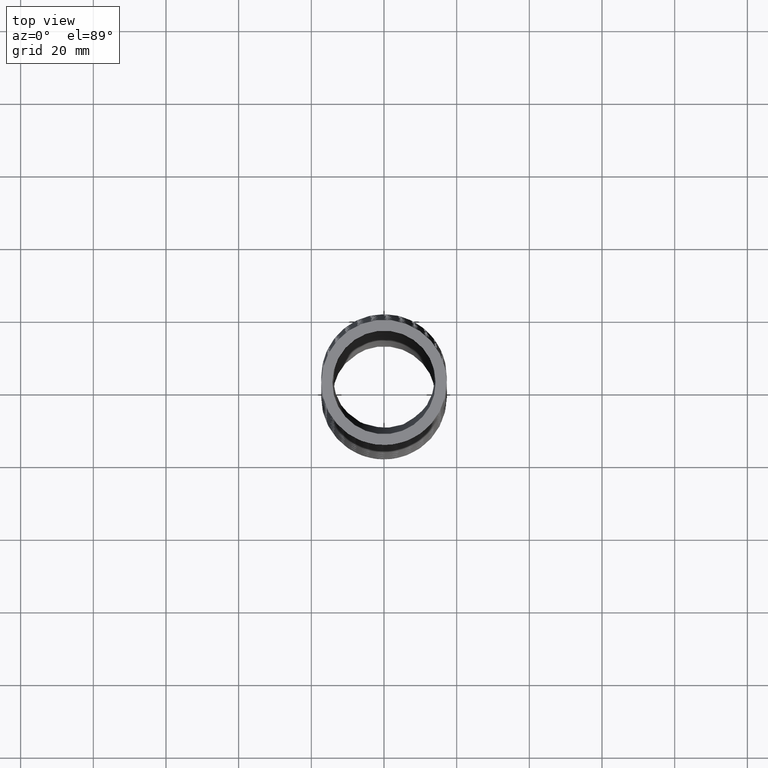
[diagram: clean part render]
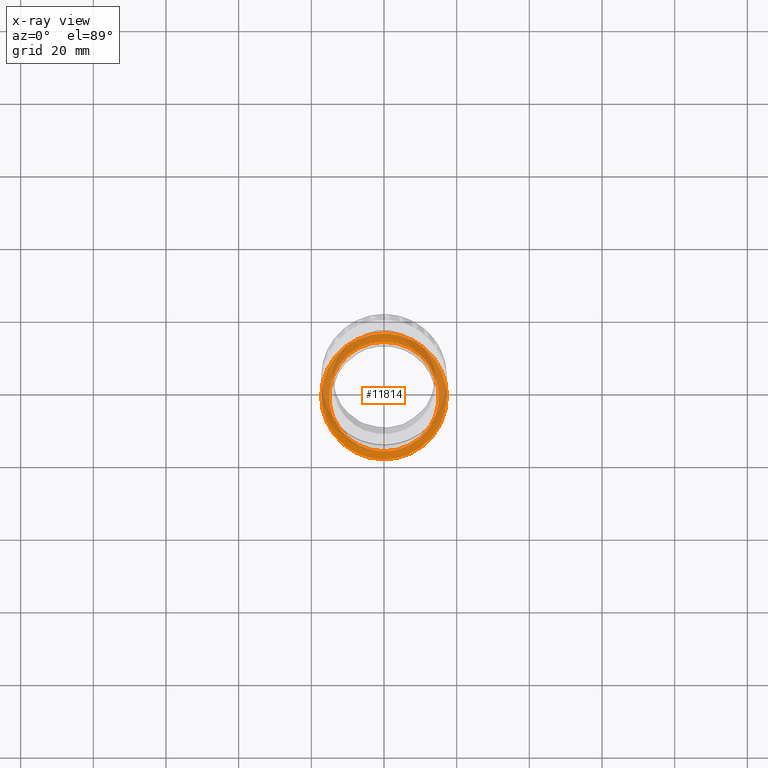
[diagram: x-ray — body ghosted, one internal face saturated and labeled with its STEP entity id]
A machine part, top view, then the same camera in x-ray: the body is ghosted and one INTERNAL B-rep face — a face not visible from any outside direction — is saturated and labeled: STEP entity #11814.
In plain terms, the highlighted planar face has unit normal (0, -0, 1).
Its self-contained STEP definition (entity closure, byte-faithful):
#191 = EDGE_CURVE ( 'NONE', #9406, #9407, #10507, .T. ) ;
#7506 = CARTESIAN_POINT ( 'NONE',  ( -0.6799999999999998300, -0.02120331437920896400, -7.473392953530793500 ) ) ;
#7508 = CARTESIAN_POINT ( 'NONE',  ( 0.6799999999999998300, -0.02120331437920920000, -7.473392953530791700 ) ) ;
#7550 = CARTESIAN_POINT ( 'NONE',  ( -0.4150477313572547000, -0.5619980563678842500, -7.473392953530787300 ) ) ;
#7551 = CARTESIAN_POINT ( 'NONE',  ( -0.3969764173826341700, -0.5754870828903109200, -7.473392953530802400 ) ) ;
#7552 = CARTESIAN_POINT ( 'NONE',  ( -0.3412200150845353100, -0.6129458261486440100, -7.473392953530798800 ) ) ;
#7553 = CARTESIAN_POINT ( 'NONE',  ( -0.3021104290278500100, -0.6339419358593497700, -7.473392953530793500 ) ) ;
#7554 = CARTESIAN_POINT ( 'NONE',  ( -0.2406012969264889100, -0.6596012006070023400, -7.473392953530796100 ) ) ;
#7555 = CARTESIAN_POINT ( 'NONE',  ( -0.2196207411613795800, -0.6671748600276415900, -7.473392953530788100 ) ) ;
#7556 = CARTESIAN_POINT ( 'NONE',  ( -0.1766729293072305500, -0.6802983485019706800, -7.473392953530788100 ) ) ;
#7557 = CARTESIAN_POINT ( 'NONE',  ( -0.1549142682663999200, -0.6857764967551672800, -7.473392953530789000 ) ) ;
#7558 = CARTESIAN_POINT ( 'NONE',  ( -0.08946346908533893400, -0.6988809778855588100, -7.473392953530789000 ) ) ;
#7559 = CARTESIAN_POINT ( 'NONE',  ( -0.04532392179567910200, -0.7032941409956037200, -7.473392953530792600 ) ) ;
#7560 = CARTESIAN_POINT ( 'NONE',  ( 0.02165193086968571200, -0.7033606704831750800, -7.473392953530792600 ) ) ;
#7561 = CARTESIAN_POINT ( 'NONE',  ( 0.04421354491846974500, -0.7022643462721162000, -7.473392953530791700 ) ) ;
#7562 = CARTESIAN_POINT ( 'NONE',  ( 0.08868805822265120300, -0.6978836031342600100, -7.473392953530790800 ) ) ;
#7563 = CARTESIAN_POINT ( 'NONE',  ( 0.1106814445971021500, -0.6946099106361441900, -7.473392953530788100 ) ) ;
#7564 = CARTESIAN_POINT ( 'NONE',  ( 0.1759460441836651100, -0.6816101734470223500, -7.473392953530789000 ) ) ;
#7565 = CARTESIAN_POINT ( 'NONE',  ( 0.2185521832983495500, -0.6687187943583020600, -7.473392953530787300 ) ) ;
#7566 = CARTESIAN_POINT ( 'NONE',  ( 0.3016120015362769300, -0.6342283596159967700, -7.473392953530789000 ) ) ;
#7567 = CARTESIAN_POINT ( 'NONE',  ( 0.3407598208029019600, -0.6131815282807716600, -7.473392953530792600 ) ) ;
#7568 = CARTESIAN_POINT ( 'NONE',  ( 0.3960545227818803000, -0.5761420361169331500, -7.473392953530792600 ) ) ;
#7569 = CARTESIAN_POINT ( 'NONE',  ( 0.4139106677936286200, -0.5628772133752305600, -7.473392953530781900 ) ) ;
#7570 = CARTESIAN_POINT ( 'NONE',  ( 0.4484457992491507300, -0.5344689223631664500, -7.473392953530780100 ) ) ;
#7571 = CARTESIAN_POINT ( 'NONE',  ( 0.4651530502151605700, -0.5192789588199441300, -7.473392953530789000 ) ) ;
#7572 = CARTESIAN_POINT ( 'NONE',  ( 0.5124013336726714900, -0.4718683399283489200, -7.473392953530788100 ) ) ;
#7573 = CARTESIAN_POINT ( 'NONE',  ( 0.5404818473240110600, -0.4375381150760500600, -7.473392953530793500 ) ) ;
#7574 = CARTESIAN_POINT ( 'NONE',  ( 0.5775240784299490200, -0.3819970731399521800, -7.473392953530792600 ) ) ;
#7575 = CARTESIAN_POINT ( 'NONE',  ( 0.5890579060613073700, -0.3627301762273905100, -7.473392953530791700 ) ) ;
#7576 = CARTESIAN_POINT ( 'NONE',  ( 0.6101774119966828500, -0.3231205662017073700, -7.473392953530790800 ) ) ;
#7577 = CARTESIAN_POINT ( 'NONE',  ( 0.6196820910986998700, -0.3029486601395903200, -7.473392953530788100 ) ) ;
#7578 = CARTESIAN_POINT ( 'NONE',  ( 0.6451306485290873000, -0.2413663428121724500, -7.473392953530788100 ) ) ;
#7579 = CARTESIAN_POINT ( 'NONE',  ( 0.6580379510490765900, -0.1988993892499501000, -7.473392953530791700 ) ) ;
#7580 = CARTESIAN_POINT ( 'NONE',  ( 0.6711710143586220300, -0.1330320346742376900, -7.473392953530790800 ) ) ;
#7581 = CARTESIAN_POINT ( 'NONE',  ( 0.6744894098091518400, -0.1107215655237049800, -7.473392953530791700 ) ) ;
#7582 = CARTESIAN_POINT ( 'NONE',  ( 0.6788935072329024300, -0.06609972855633375300, -7.473392953530790800 ) ) ;
#7583 = CARTESIAN_POINT ( 'NONE',  ( 0.6799999999999996000, -0.04369758788995287800, -7.473392953530792600 ) ) ;
#7584 = CARTESIAN_POINT ( 'NONE',  ( 0.6799999999999998300, -0.02120331437920920000, -7.473392953530791700 ) ) ;
#7585 = B_SPLINE_CURVE_WITH_KNOTS ( 'NONE', 3,
 ( #7584, #7583, #7582, #7581, #7580, #7579, #7578, #7577, #7576, #7575, #7574, #7573, #7572, #7571, #7570, #7569, #7568, #7567, #7566, #7565, #7564, #7563, #7562, #7561, #7560, #7559, #7558, #7557, #7556, #7555, #7554, #7553, #7552, #7551, #7550, #7624, #7623, #7622, #7621, #7620, #7619, #7618, #7617, #7616, #7615, #7614, #7613, #7612, #7611 ),
 .UNSPECIFIED., .F., .F.,
 ( 4, 2, 2, 2, 2, 2, 2, 2, 2, 2, 2, 2, 2, 2, 2, 2, 2, 2, 1, 2, 2, 2, 2, 2, 4 ),
 ( 0.0000000000000000000, 0.001708152414843737400, 0.003416304829687474300, 0.006832609659374947800, 0.008540762074218687100, 0.01024891448906242600, 0.01366521931874990800, 0.01537337173359364800, 0.01708152414843738800, 0.02049782897812487200, 0.02391413380781235900, 0.02562228622265609900, 0.02733043863749984000, 0.03074674346718731700, 0.03245489588203105700, 0.03416304829687479700, 0.03757935312656227000, 0.03928750554140600400, 0.04099565795624974400, 0.04270381037109348400, 0.04441196278593721700, 0.04782826761562469800, 0.04953642003046843100, 0.05124457244531216400, 0.05466087727499964500 ),
 .UNSPECIFIED. ) ;
#7611 = CARTESIAN_POINT ( 'NONE',  ( -0.6799999999999998300, -0.02120331437920896400, -7.473392953530793500 ) ) ;
#7612 = CARTESIAN_POINT ( 'NONE',  ( -0.6799999999999999400, -0.06581397836407584800, -7.473392953530790800 ) ) ;
#7613 = CARTESIAN_POINT ( 'NONE',  ( -0.6756789233401691000, -0.1099574831942075200, -7.473392953530793500 ) ) ;
#7614 = CARTESIAN_POINT ( 'NONE',  ( -0.6627525627692757400, -0.1754759877235449700, -7.473392953530797000 ) ) ;
#7615 = CARTESIAN_POINT ( 'NONE',  ( -0.6573334567097677300, -0.1972901030265583300, -7.473392953530796100 ) ) ;
#7616 = CARTESIAN_POINT ( 'NONE',  ( -0.6443760401877060000, -0.2402451855545520700, -7.473392953530794400 ) ) ;
#7617 = CARTESIAN_POINT ( 'NONE',  ( -0.6368914698754250000, -0.2612439795765457700, -7.473392953530788100 ) ) ;
#7618 = CARTESIAN_POINT ( 'NONE',  ( -0.6115081778701676500, -0.3228460065667207400, -7.473392953530787300 ) ) ;
#7619 = CARTESIAN_POINT ( 'NONE',  ( -0.5907077701661560500, -0.3620681613112921600, -7.473392953530789000 ) ) ;
#7620 = CARTESIAN_POINT ( 'NONE',  ( -0.5535271168347288800, -0.4180551497474374000, -7.473392953530789000 ) ) ;
#7621 = CARTESIAN_POINT ( 'NONE',  ( -0.5401485299771056100, -0.4361853514680377700, -7.473392953530793500 ) ) ;
#7622 = CARTESIAN_POINT ( 'NONE',  ( -0.5119656598711067600, -0.4707011331933605400, -7.473392953530791700 ) ) ;
#7623 = CARTESIAN_POINT ( 'NONE',  ( -0.4822272560112738100, -0.5036763332455277400, -7.473392953530787300 ) ) ;
#7624 = CARTESIAN_POINT ( 'NONE',  ( -0.4494175947961690000, -0.5336097974411691000, -7.473392953530786400 ) ) ;
#9406 = VERTEX_POINT ( 'NONE', #7506 ) ;
#9407 = VERTEX_POINT ( 'NONE', #7508 ) ;
#9413 = EDGE_CURVE ( 'NONE', #9407, #9406, #7585, .T. ) ;
#10482 = CARTESIAN_POINT ( 'NONE',  ( -0.1111498736207185600, 0.6521034859475640700, -7.473392953530794400 ) ) ;
#10483 = CARTESIAN_POINT ( 'NONE',  ( -0.1769335723764164400, 0.6389354278222229000, -7.473392953530792600 ) ) ;
#10484 = CARTESIAN_POINT ( 'NONE',  ( -0.2193701949169171200, 0.6259718741190323200, -7.473392953530788100 ) ) ;
#10485 = CARTESIAN_POINT ( 'NONE',  ( -0.2809372676021560400, 0.6003698877480051500, -7.473392953530791700 ) ) ;
#10486 = CARTESIAN_POINT ( 'NONE',  ( -0.3011091733115240900, 0.5908024847482695700, -7.473392953530800600 ) ) ;
#10487 = CARTESIAN_POINT ( 'NONE',  ( -0.3407278582520801800, 0.5695294358863729500, -7.473392953530798800 ) ) ;
#10488 = CARTESIAN_POINT ( 'NONE',  ( -0.3598810461574042400, 0.5579787548400960700, -7.473392953530789000 ) ) ;
#10489 = CARTESIAN_POINT ( 'NONE',  ( -0.4152571258501351300, 0.5207854029347258600, -7.473392953530792600 ) ) ;
#10490 = CARTESIAN_POINT ( 'NONE',  ( -0.4494992889591242800, 0.4925804446604542500, -7.473392953530789000 ) ) ;
#10491 = CARTESIAN_POINT ( 'NONE',  ( -0.4967994504369267500, 0.4450948838828143700, -7.473392953530791700 ) ) ;
#10492 = CARTESIAN_POINT ( 'NONE',  ( -0.5119312374311126800, 0.4283236857098823800, -7.473392953530796100 ) ) ;
#10493 = CARTESIAN_POINT ( 'NONE',  ( -0.5401772904616607400, 0.3937328546193217300, -7.473392953530794400 ) ) ;
#10494 = CARTESIAN_POINT ( 'NONE',  ( -0.5533708132744131800, 0.3758453262495665100, -7.473392953530789000 ) ) ;
#10495 = CARTESIAN_POINT ( 'NONE',  ( -0.5779376110257956600, 0.3389107344731668300, -7.473392953530789000 ) ) ;
#10496 = CARTESIAN_POINT ( 'NONE',  ( -0.5893108273869766000, 0.3198636337514969600, -7.473392953530787300 ) ) ;
#10497 = CARTESIAN_POINT ( 'NONE',  ( -0.6102228325964939000, 0.2806008645520661800, -7.473392953530786400 ) ) ;
#10498 = CARTESIAN_POINT ( 'NONE',  ( -0.6197800036957555900, 0.2603407433608920800, -7.473392953530786400 ) ) ;
#10499 = CARTESIAN_POINT ( 'NONE',  ( -0.6454813586075928100, 0.1980254379846942700, -7.473392953530787300 ) ) ;
#10500 = CARTESIAN_POINT ( 'NONE',  ( -0.6582841155655089200, 0.1554704134391145500, -7.473392953530786400 ) ) ;
#10501 = CARTESIAN_POINT ( 'NONE',  ( -0.6712381769892845600, 0.09017835861537112900, -7.473392953530787300 ) ) ;
#10502 = CARTESIAN_POINT ( 'NONE',  ( -0.6745068488510547200, 0.06816929633153344400, -7.473392953530789000 ) ) ;
#10503 = CARTESIAN_POINT ( 'NONE',  ( -0.6788947031370090600, 0.02364922274214128000, -7.473392953530788100 ) ) ;
#10504 = CARTESIAN_POINT ( 'NONE',  ( -0.6799999999999997200, 0.001102897452116925300, -7.473392953530786400 ) ) ;
#10505 = CARTESIAN_POINT ( 'NONE',  ( -0.6799999999999998300, -0.02120331437920896400, -7.473392953530793500 ) ) ;
#10507 = B_SPLINE_CURVE_WITH_KNOTS ( 'NONE', 3,
 ( #10505, #10504, #10503, #10502, #10501, #10500, #10499, #10498, #10497, #10496, #10495, #10494, #10493, #10492, #10491, #10490, #10489, #10488, #10487, #10486, #10485, #10484, #10483, #10482, #10558, #10557, #10556, #10555, #10554, #10553, #10552, #10551, #10550, #10549, #10548, #10547, #10546, #10545, #10544, #10543, #10542, #10541, #10540, #10539, #10538, #10537, #10536, #10535, #10534, #10533, #10532, #10531, #10530, #10528 ),
 .UNSPECIFIED., .F., .F.,
 ( 4, 2, 2, 2, 2, 2, 2, 2, 2, 2, 2, 2, 2, 2, 2, 2, 2, 2, 2, 2, 2, 2, 2, 2, 2, 2, 4 ),
 ( 0.05466087727499964500, 0.05636909706830377200, 0.05807731686160790000, 0.06149375644821615500, 0.06320197624152028300, 0.06491019603482442400, 0.06661841582812855200, 0.06832663562143268000, 0.07174307520804094900, 0.07345129500134507700, 0.07515951479464920400, 0.07857595438125747300, 0.08028417417456161500, 0.08199239396786574300, 0.08370061376116988400, 0.08540883355447401200, 0.08882527314108229500, 0.09053349293438642300, 0.09224171272769055000, 0.09565815231429881900, 0.09736637210760296100, 0.09907459190090708900, 0.1024910314875153700, 0.1041992512808195000, 0.1059074710741236300, 0.1076156908674277700, 0.1093239106607319100 ),
 .UNSPECIFIED. ) ;
#10528 = CARTESIAN_POINT ( 'NONE',  ( 0.6799999999999998300, -0.02120331437920920000, -7.473392953530791700 ) ) ;
#10530 = CARTESIAN_POINT ( 'NONE',  ( 0.6799999999999997200, 0.001291846423267828300, -7.473392953530789000 ) ) ;
#10531 = CARTESIAN_POINT ( 'NONE',  ( 0.6788831792186593700, 0.02380218608407017000, -7.473392953530784600 ) ) ;
#10532 = CARTESIAN_POINT ( 'NONE',  ( 0.6744970506680921800, 0.06823249565757739900, -7.473392953530783700 ) ) ;
#10533 = CARTESIAN_POINT ( 'NONE',  ( 0.6712317081766024900, 0.09021605295038362400, -7.473392953530794400 ) ) ;
#10534 = CARTESIAN_POINT ( 'NONE',  ( 0.6625967066936918600, 0.1337286638255905100, -7.473392953530794400 ) ) ;
#10535 = CARTESIAN_POINT ( 'NONE',  ( 0.6572270012383759600, 0.1552577073724220600, -7.473392953530789000 ) ) ;
#10536 = CARTESIAN_POINT ( 'NONE',  ( 0.6443625302968347700, 0.1978568104354418200, -7.473392953530790800 ) ) ;
#10537 = CARTESIAN_POINT ( 'NONE',  ( 0.6368420847330406000, 0.2189886690789619200, -7.473392953530792600 ) ) ;
#10538 = CARTESIAN_POINT ( 'NONE',  ( 0.6111370269515387100, 0.2812631948397366100, -7.473392953530791700 ) ) ;
#10539 = CARTESIAN_POINT ( 'NONE',  ( 0.5902127123785173600, 0.3204617682698369100, -7.473392953530787300 ) ) ;
#10540 = CARTESIAN_POINT ( 'NONE',  ( 0.5533335344583308900, 0.3758984401552478700, -7.473392953530788100 ) ) ;
#10541 = CARTESIAN_POINT ( 'NONE',  ( 0.5401183498454386100, 0.3938130484939221200, -7.473392953530791700 ) ) ;
#10542 = CARTESIAN_POINT ( 'NONE',  ( 0.5117942242326410900, 0.4284834061927355100, -7.473392953530790800 ) ) ;
#10543 = CARTESIAN_POINT ( 'NONE',  ( 0.4966752067253342700, 0.4452257926852815100, -7.473392953530788100 ) ) ;
#10544 = CARTESIAN_POINT ( 'NONE',  ( 0.4494649218585178900, 0.4926025345701010600, -7.473392953530790800 ) ) ;
#10545 = CARTESIAN_POINT ( 'NONE',  ( 0.4152322302581350500, 0.5208114088829063300, -7.473392953530787300 ) ) ;
#10546 = CARTESIAN_POINT ( 'NONE',  ( 0.3597468441356566600, 0.5580642308067261800, -7.473392953530784600 ) ) ;
#10547 = CARTESIAN_POINT ( 'NONE',  ( 0.3404521763538087000, 0.5696865056794939700, -7.473392953530793500 ) ) ;
#10548 = CARTESIAN_POINT ( 'NONE',  ( 0.3009569161739780200, 0.5908750960819537700, -7.473392953530792600 ) ) ;
#10549 = CARTESIAN_POINT ( 'NONE',  ( 0.2808276231456934300, 0.6004188479264105400, -7.473392953530791700 ) ) ;
#10550 = CARTESIAN_POINT ( 'NONE',  ( 0.2193256916414479100, 0.6259836271252302600, -7.473392953530791700 ) ) ;
#10551 = CARTESIAN_POINT ( 'NONE',  ( 0.1768497581960382100, 0.6389677884803242100, -7.473392953530796100 ) ) ;
#10552 = CARTESIAN_POINT ( 'NONE',  ( 0.1108512023999562600, 0.6521554194082938000, -7.473392953530796100 ) ) ;
#10553 = CARTESIAN_POINT ( 'NONE',  ( 0.08861291804595712600, 0.6554556802482897100, -7.473392953530787300 ) ) ;
#10554 = CARTESIAN_POINT ( 'NONE',  ( 0.04430413425603836600, 0.6598202543947590000, -7.473392953530787300 ) ) ;
#10555 = CARTESIAN_POINT ( 'NONE',  ( 0.02213758800183345700, 0.6609046537845350000, -7.473392953530789000 ) ) ;
#10556 = CARTESIAN_POINT ( 'NONE',  ( -0.02221954425893606800, 0.6609019725635287800, -7.473392953530791700 ) ) ;
#10557 = CARTESIAN_POINT ( 'NONE',  ( -0.04441012988117886600, 0.6598149266678464700, -7.473392953530788100 ) ) ;
#10558 = CARTESIAN_POINT ( 'NONE',  ( -0.08881577047815576700, 0.6554305496467128800, -7.473392953530788100 ) ) ;
#11520 = EDGE_CURVE ( 'NONE', #11531, #11543, #15843, .T. ) ;
#11531 = VERTEX_POINT ( 'NONE', #15828 ) ;
#11543 = VERTEX_POINT ( 'NONE', #15888 ) ;
#11803 = ORIENTED_EDGE ( 'NONE', *, *, #11822, .F. ) ;
#11806 = ORIENTED_EDGE ( 'NONE', *, *, #191, .F. ) ;
#11807 = EDGE_LOOP ( 'NONE', ( #11811, #11803 ) ) ;
#11811 = ORIENTED_EDGE ( 'NONE', *, *, #11520, .F. ) ;
#11813 = ORIENTED_EDGE ( 'NONE', *, *, #9413, .F. ) ;
#11814 = ADVANCED_FACE ( 'NONE', ( #16923, #16922 ), #16904, .T. ) ;
#11815 = EDGE_LOOP ( 'NONE', ( #11813, #11806 ) ) ;
#11822 = EDGE_CURVE ( 'NONE', #11543, #11531, #16951, .T. ) ;
#15828 = CARTESIAN_POINT ( 'NONE',  ( 0.0000000000000000000, -0.6186233270923615600, -7.473392953530790800 ) ) ;
#15839 = DIRECTION ( 'NONE',  ( 0.0000000000000000000, -1.000000000000000000, 0.0000000000000000000 ) ) ;
#15840 = DIRECTION ( 'NONE',  ( 0.0000000000000000000, -1.734723475976807100E-018, 1.000000000000000000 ) ) ;
#15841 = CARTESIAN_POINT ( 'NONE',  ( 0.0000000000000000000, -0.02362332709236139900, -7.473392953530790800 ) ) ;
#15842 = AXIS2_PLACEMENT_3D ( 'NONE', #15841, #15840, #15839 ) ;
#15843 = CIRCLE ( 'NONE', #15842, 0.5950000000000002000 ) ;
#15888 = CARTESIAN_POINT ( 'NONE',  ( 7.286648454926752700E-017, 0.5713766729076387200, -7.473392953530790800 ) ) ;
#16901 = DIRECTION ( 'NONE',  ( 0.0000000000000000000, -1.734723475976807100E-018, 1.000000000000000000 ) ) ;
#16902 = CARTESIAN_POINT ( 'NONE',  ( 0.0000000000000000000, 0.6713766729076386900, -7.473392953530790800 ) ) ;
#16903 = AXIS2_PLACEMENT_3D ( 'NONE', #16902, #16901, #16959 ) ;
#16904 = PLANE ( 'NONE',  #16903 ) ;
#16922 = FACE_BOUND ( 'NONE', #11807, .T. ) ;
#16923 = FACE_OUTER_BOUND ( 'NONE', #11815, .T. ) ;
#16947 = DIRECTION ( 'NONE',  ( 0.0000000000000000000, -1.000000000000000000, 0.0000000000000000000 ) ) ;
#16948 = DIRECTION ( 'NONE',  ( 0.0000000000000000000, -1.734723475976807100E-018, 1.000000000000000000 ) ) ;
#16949 = CARTESIAN_POINT ( 'NONE',  ( 0.0000000000000000000, -0.02362332709236139900, -7.473392953530790800 ) ) ;
#16950 = AXIS2_PLACEMENT_3D ( 'NONE', #16949, #16948, #16947 ) ;
#16951 = CIRCLE ( 'NONE', #16950, 0.5950000000000002000 ) ;
#16959 = DIRECTION ( 'NONE',  ( 0.0000000000000000000, -1.000000000000000000, -1.734723475976807100E-018 ) ) ;